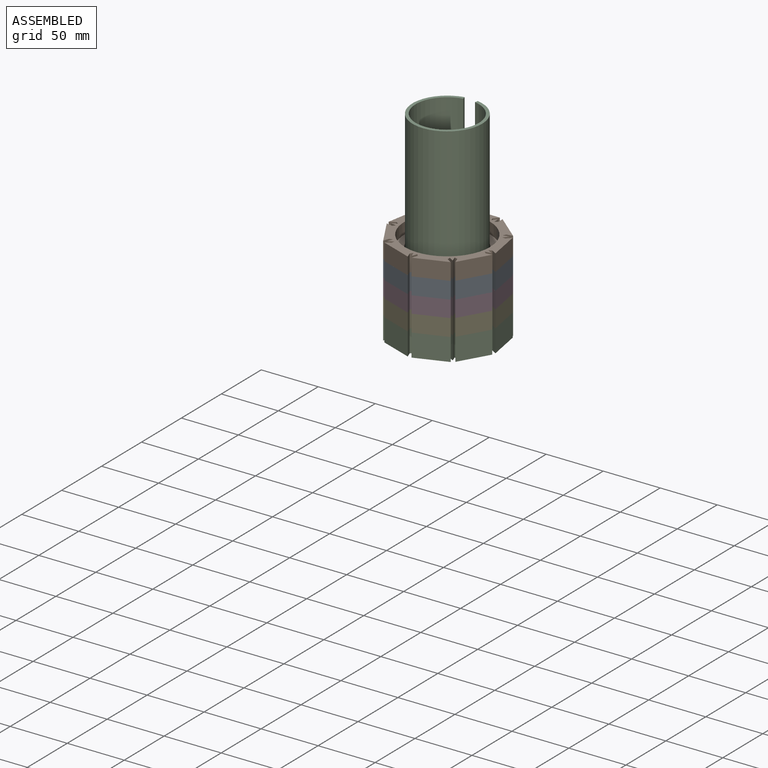
[diagram: assembled view]
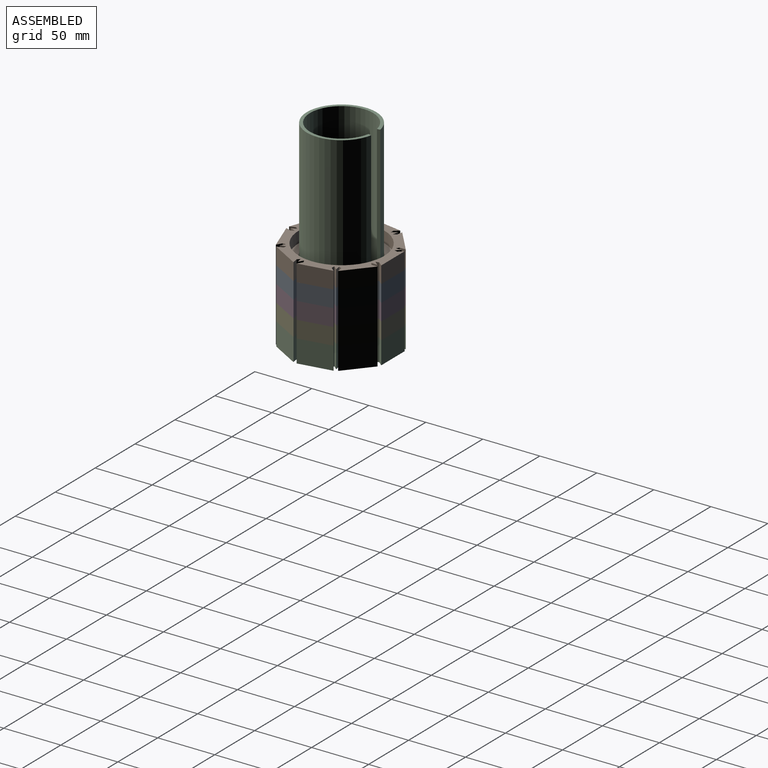
[diagram: assembled view, second angle]
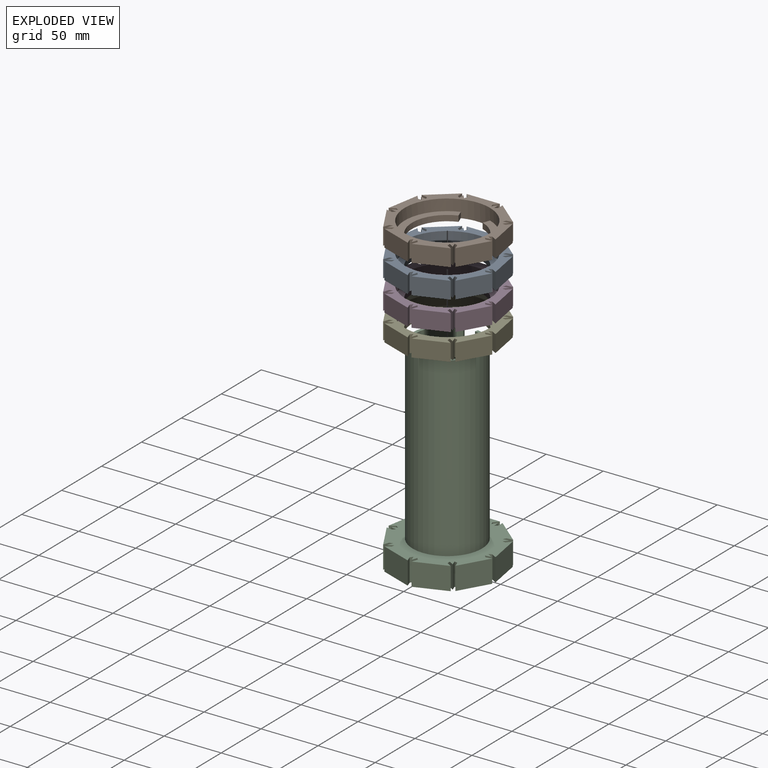
[diagram: exploded view]
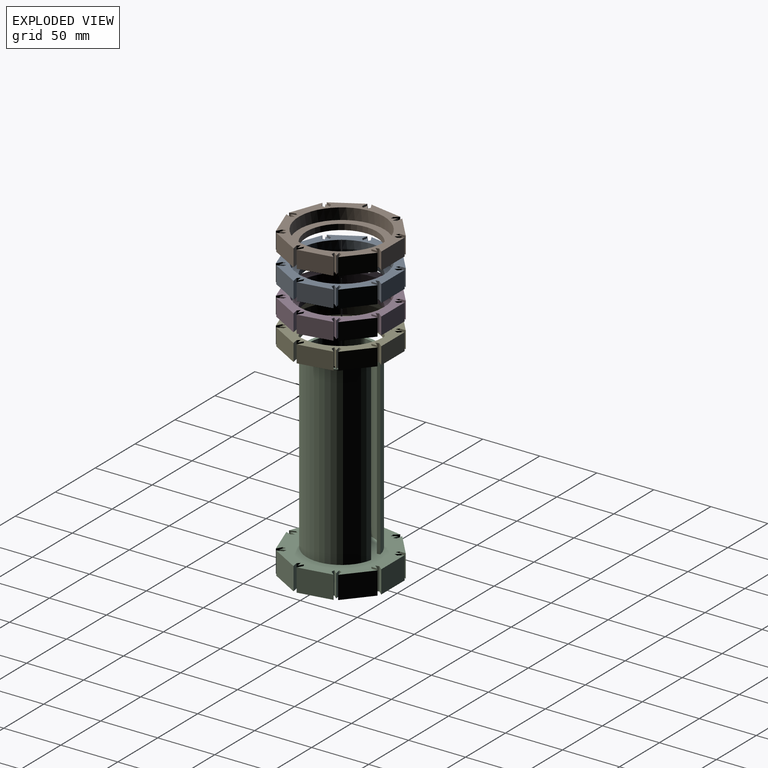
[diagram: exploded view, second angle]
ASSEMBLY  parts=5 mates=4
PART A: 70 faces, bbox 93.7x92.3x15 mm
  f0: plane 6.11x5mm, normal (0.94,0.34,0), area 32.5mm2, adj f2,f3,f4,f5
  f1: plane 6.11x5mm, normal (-0.94,0.34,0), area 32.5mm2, adj f2,f3,f4,f5
  f2: cylinder r=31mm len=62mm, axis (0,0,-1), area 865.7mm2, adj f0,f1,f3,f4
  f3: plane 75x72.74mm, normal (0,0,1), area 1243.4mm2, adj f0,f1,f2,f5
  f4: plane 93.71x92.29mm, normal (0,0,-1), area 3181.1mm2, adj f0,f1,f2,f5,f6,f7,f8,f9
  f5: cylinder r=37.5mm len=75mm, axis (0,0,-1), area 2487.1mm2, adj f0,f1,f3,f4,f69
  f6: plane 15x5.13mm, normal (-1,0,0), area 77mm2, adj f4,f7,f68,f69
  f7: plane 15x2.44mm, normal (0.56,0.83,0), area 44mm2, adj f4,f6,f8,f69
  f8: plane 15x5.38mm, normal (1,0,0), area 80.7mm2, adj f4,f7,f9,f69
  f9: plane 22.41x18.81mm, normal (-0.64,0.77,0), area 438.8mm2, adj f4,f8,f10,f69
  f10: plane 15x5.3mm, normal (-0.17,-0.98,0), area 80.7mm2, adj f4,f9,f11,f69
  f11: plane 15x2.68mm, normal (-0.91,-0.4,0), area 44mm2, adj f4,f10,f12,f69
  f12: plane 15x5.05mm, normal (0.17,0.98,0), area 77mm2, adj f4,f11,f13,f69
  f13: plane 15x3.93mm, normal (-0.77,-0.64,0), area 77mm2, adj f4,f12,f14,f69
  f14: plane 15x2.92mm, normal (-0.11,0.99,0), area 44mm2, adj f4,f13,f15,f69
  f15: plane 15x4.12mm, normal (0.77,0.64,0), area 80.7mm2, adj f4,f14,f16,f69
  f16: plane 28.81x15mm, normal (-0.98,0.17,0), area 438.8mm2, adj f4,f15,f17,f69
  f17: plane 15x4.66mm, normal (0.5,-0.87,0), area 80.7mm2, adj f4,f16,f18,f69
  f18: plane 15x2.63mm, normal (-0.44,-0.9,0), area 44mm2, adj f4,f17,f19,f69
  f19: plane 15x4.44mm, normal (-0.5,0.87,0), area 77mm2, adj f4,f18,f20,f69
  f20: plane 15x5.05mm, normal (-0.17,-0.98,0), area 77mm2, adj f4,f19,f21,f69
  f21: plane 15x2.11mm, normal (-0.72,0.69,0), area 44mm2, adj f4,f20,f22,f69
  f22: plane 15x5.3mm, normal (0.17,0.98,0), area 80.7mm2, adj f4,f21,f23,f69
  f23: plane 25.34x15mm, normal (-0.87,-0.5,0), area 438.8mm2, adj f4,f22,f24,f69
  f24: plane 15x5.06mm, normal (0.94,-0.34,0), area 80.7mm2, adj f4,f23,f25,f69
  f25: plane 15x2.85mm, normal (0.24,-0.97,0), area 44mm2, adj f4,f24,f26,f69
  f26: plane 15x4.82mm, normal (-0.94,0.34,0), area 77mm2, adj f4,f25,f27,f69
  f27: plane 15x4.44mm, normal (0.5,-0.87,0), area 77mm2, adj f4,f26,f28,f69
  f28: plane 15x2.93mm, normal (-1,0.07,0), area 44mm2, adj f4,f27,f29,f69
  f29: plane 15x4.66mm, normal (-0.5,0.87,0), area 80.7mm2, adj f4,f28,f30,f69
  f30: plane 27.49x15mm, normal (-0.34,-0.94,0), area 438.8mm2, adj f4,f29,f31,f69
  f31: plane 15x5.06mm, normal (0.94,0.34,0), area 80.7mm2, adj f4,f30,f32,f69
  f32: plane 15x2.37mm, normal (0.81,-0.59,0), area 44mm2, adj f4,f31,f33,f69
  f33: plane 15x4.82mm, normal (-0.94,-0.34,0), area 77mm2, adj f4,f32,f34,f69
  f34: plane 15x4.82mm, normal (0.94,-0.34,0), area 77mm2, adj f4,f33,f35,f69
  f35: plane 15x2.37mm, normal (-0.81,-0.59,0), area 44mm2, adj f4,f34,f36,f69
  f36: plane 15x5.06mm, normal (-0.94,0.34,0), area 80.7mm2, adj f4,f35,f37,f69
  f37: plane 27.49x15mm, normal (0.34,-0.94,0), area 438.8mm2, adj f4,f36,f38,f69
  f38: plane 15x4.66mm, normal (0.5,0.87,0), area 80.7mm2, adj f4,f37,f39,f69
  f39: plane 15x2.93mm, normal (1,0.07,0), area 44mm2, adj f4,f38,f40,f69
  f40: plane 15x4.44mm, normal (-0.5,-0.87,0), area 77mm2, adj f4,f39,f41,f69
  f41: plane 15x4.82mm, normal (0.94,0.34,0), area 77mm2, adj f4,f40,f42,f69
  f42: plane 15x2.85mm, normal (-0.24,-0.97,0), area 44mm2, adj f4,f41,f43,f69
  f43: plane 15x5.06mm, normal (-0.94,-0.34,0), area 80.7mm2, adj f4,f42,f44,f69
  f44: plane 25.34x15mm, normal (0.87,-0.5,0), area 438.8mm2, adj f4,f43,f45,f69
  f45: plane 15x5.3mm, normal (-0.17,0.98,0), area 80.7mm2, adj f4,f44,f46,f69
  f46: plane 15x2.11mm, normal (0.72,0.69,0), area 44mm2, adj f4,f45,f47,f69
  f47: plane 15x5.05mm, normal (0.17,-0.98,0), area 77mm2, adj f4,f46,f48,f69
  f48: plane 15x4.44mm, normal (0.5,0.87,0), area 77mm2, adj f4,f47,f49,f69
  f49: plane 15x2.63mm, normal (0.44,-0.9,0), area 44mm2, adj f4,f48,f50,f69
  f50: plane 15x4.66mm, normal (-0.5,-0.87,0), area 80.7mm2, adj f4,f49,f51,f69
  f51: plane 28.81x15mm, normal (0.98,0.17,0), area 438.8mm2, adj f4,f50,f52,f69
  f52: plane 15x4.12mm, normal (-0.77,0.64,0), area 80.7mm2, adj f4,f51,f53,f69
  f53: plane 15x2.92mm, normal (0.11,0.99,0), area 44mm2, adj f4,f52,f54,f69
  f54: plane 15x3.93mm, normal (0.77,-0.64,0), area 77mm2, adj f4,f53,f55,f69
  f55: plane 15x5.05mm, normal (-0.17,0.98,0), area 77mm2, adj f4,f54,f56,f69
  f56: plane 15x2.68mm, normal (0.91,-0.4,0), area 44mm2, adj f4,f55,f57,f69
  f57: plane 15x5.3mm, normal (0.17,-0.98,0), area 80.7mm2, adj f4,f56,f58,f69
  f58: plane 22.41x18.81mm, normal (0.64,0.77,0), area 438.8mm2, adj f4,f57,f59,f69
  f59: plane 15x5.38mm, normal (-1,0,0), area 80.7mm2, adj f4,f58,f60,f69
  f60: plane 15x2.44mm, normal (-0.56,0.83,0), area 44mm2, adj f4,f59,f61,f69
  f61: plane 15x5.13mm, normal (1,0,0), area 77mm2, adj f4,f60,f62,f69
  f62: plane 15x3.93mm, normal (-0.77,0.64,0), area 77mm2, adj f4,f61,f63,f69
  f63: plane 15x2.82mm, normal (0.96,0.28,0), area 44mm2, adj f4,f62,f64,f69
  f64: plane 15x4.12mm, normal (0.77,-0.64,0), area 80.7mm2, adj f4,f63,f65,f69
  f65: plane 29.26x15mm, normal (0,1,0), area 438.8mm2, adj f4,f64,f66,f69
  f66: plane 15x4.12mm, normal (-0.77,-0.64,0), area 80.7mm2, adj f4,f65,f67,f69
  f67: plane 15x2.82mm, normal (-0.96,0.28,0), area 44mm2, adj f4,f66,f68,f69
  f68: plane 15x3.93mm, normal (0.77,0.64,0), area 77mm2, adj f4,f6,f67,f69
  f69: plane 93.71x92.29mm, normal (0,0,1), area 1937.7mm2, adj f5,f6,f7,f8,f9,f10,f11,f12
PART B: same geometry as A
PART C: 70 faces, bbox 93.7x92.3x175 mm
  f0: plane 20x5.13mm, normal (-1,0,0), area 102.6mm2, adj f1,f62,f63,f64
  f1: plane 20x2.44mm, normal (0.56,0.83,0), area 58.6mm2, adj f0,f2,f63,f64
  f2: plane 20x5.38mm, normal (1,0,0), area 107.6mm2, adj f1,f3,f63,f64
  f3: plane 22.41x20mm, normal (-0.64,0.77,0), area 585.1mm2, adj f2,f4,f63,f64
  f4: plane 20x5.3mm, normal (-0.17,-0.98,0), area 107.6mm2, adj f3,f5,f63,f64
  f5: plane 20x2.68mm, normal (-0.91,-0.4,0), area 58.6mm2, adj f4,f6,f63,f64
  f6: plane 20x5.05mm, normal (0.17,0.98,0), area 102.6mm2, adj f5,f7,f63,f64
  f7: plane 20x3.93mm, normal (-0.77,-0.64,0), area 102.6mm2, adj f6,f8,f63,f64
  f8: plane 20x2.92mm, normal (-0.11,0.99,0), area 58.6mm2, adj f7,f9,f63,f64
  f9: plane 20x4.12mm, normal (0.77,0.64,0), area 107.6mm2, adj f8,f10,f63,f64
  f10: plane 28.81x20mm, normal (-0.98,0.17,0), area 585.1mm2, adj f9,f11,f63,f64
  f11: plane 20x4.66mm, normal (0.5,-0.87,0), area 107.6mm2, adj f10,f12,f63,f64
  f12: plane 20x2.63mm, normal (-0.44,-0.9,0), area 58.6mm2, adj f11,f13,f63,f64
  f13: plane 20x4.44mm, normal (-0.5,0.87,0), area 102.6mm2, adj f12,f14,f63,f64
  f14: plane 20x5.05mm, normal (-0.17,-0.98,0), area 102.6mm2, adj f13,f15,f63,f64
  f15: plane 20x2.11mm, normal (-0.72,0.69,0), area 58.6mm2, adj f14,f16,f63,f64
  f16: plane 20x5.3mm, normal (0.17,0.98,0), area 107.6mm2, adj f15,f17,f63,f64
  f17: plane 25.34x20mm, normal (-0.87,-0.5,0), area 585.1mm2, adj f16,f18,f63,f64
  f18: plane 20x5.06mm, normal (0.94,-0.34,0), area 107.6mm2, adj f17,f19,f63,f64
  f19: plane 20x2.85mm, normal (0.24,-0.97,0), area 58.6mm2, adj f18,f20,f63,f64
  f20: plane 20x4.82mm, normal (-0.94,0.34,0), area 102.6mm2, adj f19,f21,f63,f64
  f21: plane 20x4.44mm, normal (0.5,-0.87,0), area 102.6mm2, adj f20,f22,f63,f64
  f22: plane 20x2.93mm, normal (-1,0.07,0), area 58.6mm2, adj f21,f23,f63,f64
  f23: plane 20x4.66mm, normal (-0.5,0.87,0), area 107.6mm2, adj f22,f24,f63,f64
  f24: plane 27.49x20mm, normal (-0.34,-0.94,0), area 585.1mm2, adj f23,f25,f63,f64
  f25: plane 20x5.06mm, normal (0.94,0.34,0), area 107.6mm2, adj f24,f26,f63,f64
  f26: plane 20x2.37mm, normal (0.81,-0.59,0), area 58.6mm2, adj f25,f27,f63,f64
  f27: plane 20x4.82mm, normal (-0.94,-0.34,0), area 102.6mm2, adj f26,f28,f63,f64
  f28: plane 20x4.82mm, normal (0.94,-0.34,0), area 102.6mm2, adj f27,f29,f63,f64
  f29: plane 20x2.37mm, normal (-0.81,-0.59,0), area 58.6mm2, adj f28,f30,f63,f64
  f30: plane 20x5.06mm, normal (-0.94,0.34,0), area 107.6mm2, adj f29,f31,f63,f64
  f31: plane 27.49x20mm, normal (0.34,-0.94,0), area 585.1mm2, adj f30,f32,f63,f64
  f32: plane 20x4.66mm, normal (0.5,0.87,0), area 107.6mm2, adj f31,f33,f63,f64
  f33: plane 20x2.93mm, normal (1,0.07,0), area 58.6mm2, adj f32,f34,f63,f64
  f34: plane 20x4.44mm, normal (-0.5,-0.87,0), area 102.6mm2, adj f33,f35,f63,f64
  f35: plane 20x4.82mm, normal (0.94,0.34,0), area 102.6mm2, adj f34,f36,f63,f64
  f36: plane 20x2.85mm, normal (-0.24,-0.97,0), area 58.6mm2, adj f35,f37,f63,f64
  f37: plane 20x5.06mm, normal (-0.94,-0.34,0), area 107.6mm2, adj f36,f38,f63,f64
  f38: plane 25.34x20mm, normal (0.87,-0.5,0), area 585.1mm2, adj f37,f39,f63,f64
  f39: plane 20x5.3mm, normal (-0.17,0.98,0), area 107.6mm2, adj f38,f40,f63,f64
  f40: plane 20x2.11mm, normal (0.72,0.69,0), area 58.6mm2, adj f39,f41,f63,f64
  f41: plane 20x5.05mm, normal (0.17,-0.98,0), area 102.6mm2, adj f40,f42,f63,f64
  f42: plane 20x4.44mm, normal (0.5,0.87,0), area 102.6mm2, adj f41,f43,f63,f64
  f43: plane 20x2.63mm, normal (0.44,-0.9,0), area 58.6mm2, adj f42,f44,f63,f64
  f44: plane 20x4.66mm, normal (-0.5,-0.87,0), area 107.6mm2, adj f43,f45,f63,f64
  f45: plane 28.81x20mm, normal (0.98,0.17,0), area 585.1mm2, adj f44,f46,f63,f64
  f46: plane 20x4.12mm, normal (-0.77,0.64,0), area 107.6mm2, adj f45,f47,f63,f64
  f47: plane 20x2.92mm, normal (0.11,0.99,0), area 58.6mm2, adj f46,f48,f63,f64
  f48: plane 20x3.93mm, normal (0.77,-0.64,0), area 102.6mm2, adj f47,f49,f63,f64
  f49: plane 20x5.05mm, normal (-0.17,0.98,0), area 102.6mm2, adj f48,f50,f63,f64
  f50: plane 20x2.68mm, normal (0.91,-0.4,0), area 58.6mm2, adj f49,f51,f63,f64
  f51: plane 20x5.3mm, normal (0.17,-0.98,0), area 107.6mm2, adj f50,f52,f63,f64
  f52: plane 22.41x20mm, normal (0.64,0.77,0), area 585.1mm2, adj f51,f53,f63,f64
  f53: plane 20x5.38mm, normal (-1,0,0), area 107.6mm2, adj f52,f54,f63,f64
  f54: plane 20x2.44mm, normal (-0.56,0.83,0), area 58.6mm2, adj f53,f55,f63,f64
  f55: plane 20x5.13mm, normal (1,0,0), area 102.6mm2, adj f54,f56,f63,f64
  f56: plane 20x3.93mm, normal (-0.77,0.64,0), area 102.6mm2, adj f55,f57,f63,f64
  f57: plane 20x2.82mm, normal (0.96,0.28,0), area 58.6mm2, adj f56,f58,f63,f64
  f58: plane 20x4.12mm, normal (0.77,-0.64,0), area 107.6mm2, adj f57,f59,f63,f64
  f59: plane 29.26x20mm, normal (0,1,0), area 585.1mm2, adj f58,f60,f63,f64
  f60: plane 20x4.12mm, normal (-0.77,-0.64,0), area 107.6mm2, adj f59,f61,f63,f64
  f61: plane 20x2.82mm, normal (-0.96,0.28,0), area 58.6mm2, adj f60,f62,f63,f64
  f62: plane 20x3.93mm, normal (0.77,0.64,0), area 102.6mm2, adj f0,f61,f63,f64
  f63: plane 93.71x92.29mm, normal (0,0,1), area 5883.2mm2, adj f0,f1,f2,f3,f4,f5,f6,f7
  f64: plane 93.71x92.29mm, normal (0,0,-1), area 6355.6mm2, adj f0,f1,f2,f3,f4,f5,f6,f7
  f65: plane 155x2.7mm, normal (0.98,0.19,0), area 425.8mm2, adj f63,f66,f68,f69
  f66: cylinder r=30.5mm len=155mm, axis (0,0,-1), area 27908.6mm2, adj f63,f65,f67,f69
  f67: plane 155x2.7mm, normal (-0.98,0.19,0), area 425.8mm2, adj f63,f66,f68,f69
  f68: cylinder r=27.75mm len=155mm, axis (0,0,-1), area 25395mm2, adj f63,f65,f67,f69
  f69: plane 61x60.45mm, normal (0,0,1), area 472.3mm2, adj f65,f66,f67,f68
PART D: same geometry as A
PART E: same geometry as A
PLACE A t=(-23.85,-75.4,-132.25)mm
PLACE B t=(-23.85,-75.4,-117.45)mm
PLACE C t=(-23.85,-75.4,-181.65)mm
PLACE D t=(-23.85,-75.4,-147.05)mm
PLACE E t=(-23.85,-75.4,-161.85)mm
MATE slider D.f2 <-> E.f5  axis (0,0,-1) through (-23.85,-75.4,-147.05)mm
MATE cylindrical B.f2 <-> A.f5  axis (0,0,-1) through (-23.85,-75.4,-117.45)mm
MATE cylindrical E.f2 <-> C.f66  axis (0,0,-1) through (-23.85,-75.4,-161.85)mm
MATE cylindrical A.f2 <-> D.f5  axis (0,0,-1) through (-23.85,-75.4,-132.25)mm
